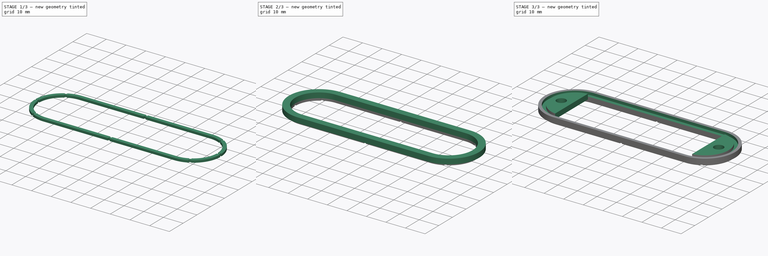
[diagram: build sequence overview — one tinted view per stage of 3, left to right]
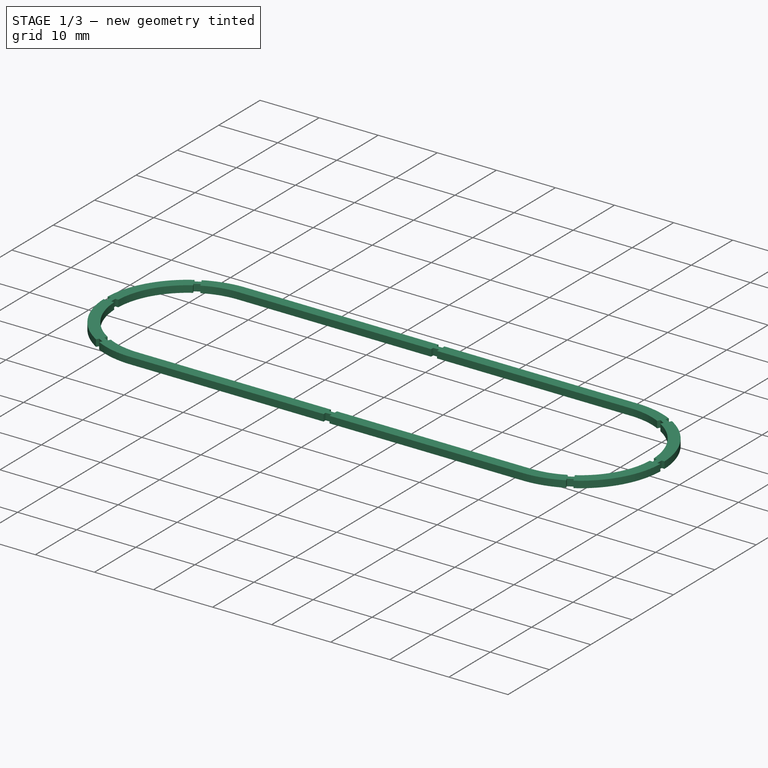
[diagram: stage 1 of 3 — iso view after this stage's code; geometry added in this stage tinted green]
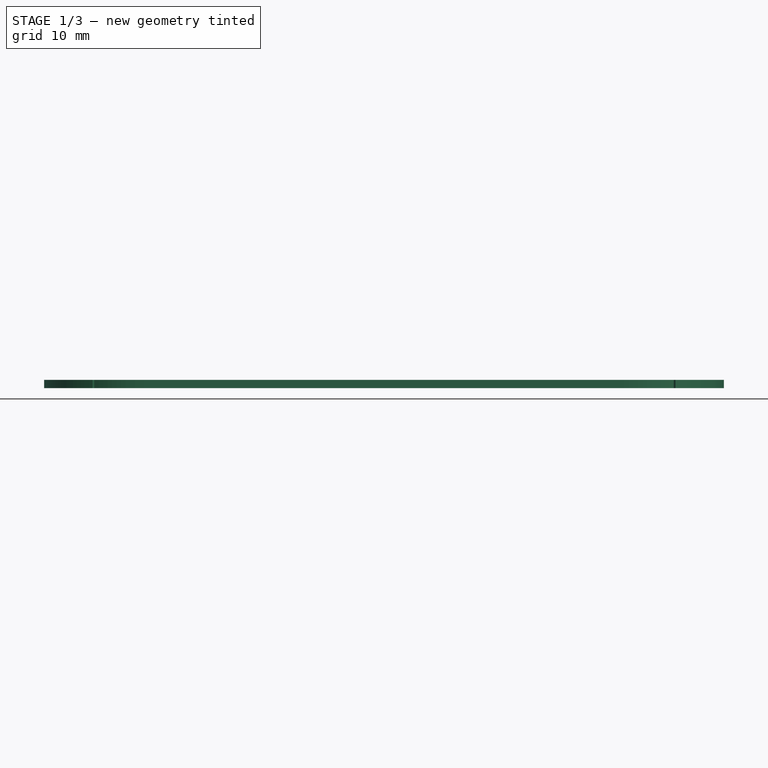
[diagram: stage 1 of 3 — front view after this stage's code; geometry added in this stage tinted green]
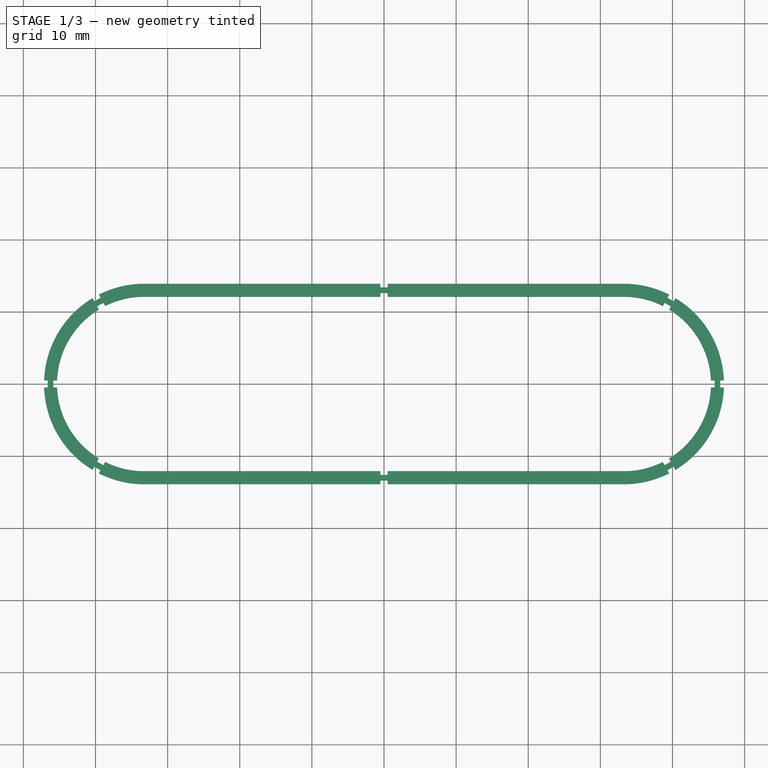
[diagram: stage 1 of 3 — top view after this stage's code; geometry added in this stage tinted green]
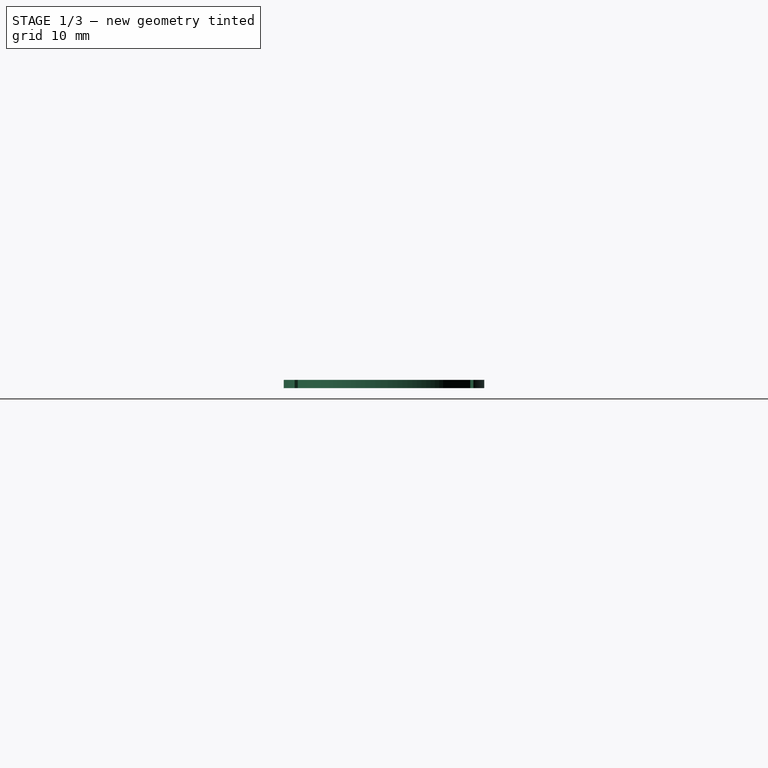
[diagram: stage 1 of 3 — right view after this stage's code; geometry added in this stage tinted green]
FCSTD DOCUMENT  (FreeCAD 0.21R33771 (Git))
Label: wall-4_2
License: All rights reserved
LicenseURL: http://en.wikipedia.org/wiki/All_rights_reserved
objects: Sketcher::SketchObject×5, PartDesign::Pad×3, PartDesign::Pocket×2, Spreadsheet::Sheet×1, PartDesign::Body×1
note: 16 computed .brp shape members not serialized (recipe doc carries the construction recipe); baked Part::Feature solids carry a one-line shape summary decoded from their .brp

FEATURE [Sketcher::SketchObject] Sketch
  FullyConstrained = true
  MapMode = 5
  Support = -> [XY_Plane]
  sketch-geometry (10):
    g0: LineSegment StartX=0 StartY=-13 StartZ=0 EndX=0 EndY=13 EndZ=0
    g1: LineSegment StartX=-33.24 StartY=12.1 StartZ=0 EndX=33.24 EndY=12.1 EndZ=0
    g2: LineSegment StartX=-33.24 StartY=13.9 StartZ=0 EndX=33.24 EndY=13.9 EndZ=0
    g3: Circle CenterX=0 CenterY=13 CenterZ=0 NormalX=0 NormalY=0 NormalZ=1 AngleXU=0 Radius=0.9
    g4: LineSegment StartX=-33.24 StartY=-12.1 StartZ=0 EndX=33.24 EndY=-12.1 EndZ=0
    g5: LineSegment StartX=-33.24 StartY=-13.9 StartZ=0 EndX=33.24 EndY=-13.9 EndZ=0
    g6: ArcOfCircle CenterX=-33.24 CenterY=2e-16 CenterZ=0 NormalX=0 NormalY=0 NormalZ=1 AngleXU=0 Radius=12.1 StartAngle=1.5708 EndAngle=4.71239
    g7: ArcOfCircle CenterX=-33.24 CenterY=1e-16 CenterZ=0 NormalX=0 NormalY=0 NormalZ=1 AngleXU=0 Radius=13.9 StartAngle=1.5708 EndAngle=4.71239
    g8: ArcOfCircle CenterX=33.24 CenterY=-4e-16 CenterZ=0 NormalX=0 NormalY=0 NormalZ=1 AngleXU=0 Radius=12.1 StartAngle=4.71239 EndAngle=7.85398
    g9: ArcOfCircle CenterX=33.24 CenterY=-8e-16 CenterZ=0 NormalX=0 NormalY=0 NormalZ=1 AngleXU=0 Radius=13.9 StartAngle=4.71239 EndAngle=7.85398
  constraints (27):
    c: Symmetric(g0,g0,g-1)
    c: PointOnObject(g-1,g0)
    c: Distance(g0) = 26
    c: Symmetric(g1,g1,g-2)
    c: Symmetric(g2,g2,g-2)
    c: Coincident(g3,g0)
    c: Tangent(g2,g3)
    c: Tangent(g3,g1)
    c: Diameter(g3) = 1.8
    c: Distance(g2) = 66.48
    c: Vertical(g2,g1)
    c: Symmetric(g4,g1,g-1)
    c: Symmetric(g1,g4,g-1)
    c: Symmetric(g2,g5,g-1)
    c: Symmetric(g5,g2,g-1)
    c: Coincident(g6,g1)
    c: Coincident(g6,g4)
    c: Coincident(g7,g2)
    c: Coincident(g7,g5)
    c: Coincident(g8,g1)
    c: Coincident(g4,g8)
    c: Coincident(g9,g2)
    c: Coincident(g5,g9)
    c: Vertical(g1,g6)
    c: Vertical(g7,g2)
    c: Vertical(g8,g1)
    c: Vertical(g2,g9)
FEATURE [PartDesign::Pad] Pad
  Direction = (0,0,1)
  Length = 1.15
  Length2 = 10
  Profile = -> Sketch
  ReferenceAxis = -> Sketch [N_Axis]
  Type = 0
  expr: Length = Spreadsheet.A2 - Spreadsheet.A4
FEATURE [Sketcher::SketchObject] Sketch001
  ExternalGeometry = -> [Pad]
  FullyConstrained = true
  MapMode = 5
  Placement = pos=(0,0,0) rot=(1,0,0;3.14159rad)
  Support = -> [Pad]
  expr: Constraints[115] = Spreadsheet.A1
  expr: Constraints[140] = Spreadsheet.A1
  expr: Constraints[143] = Spreadsheet.A1
  expr: Constraints[90] = Spreadsheet.A1
  sketch-geometry (68):
    g0: LineSegment StartX=0.5 StartY=12.1 StartZ=0 EndX=-0.5 EndY=12.1 EndZ=0
    g1: LineSegment StartX=-0.5 StartY=12.1 StartZ=0 EndX=-0.5 EndY=12.61 EndZ=0
    g2: LineSegment StartX=-0.5 StartY=12.61 StartZ=0 EndX=0.5 EndY=12.61 EndZ=0
    g3: LineSegment StartX=0.5 StartY=12.61 StartZ=0 EndX=0.5 EndY=12.1 EndZ=0
    g4: LineSegment StartX=-0.5 StartY=13.9 StartZ=0 EndX=0.5 EndY=13.9 EndZ=0
    g5: LineSegment StartX=0.5 StartY=13.9 StartZ=0 EndX=0.5 EndY=13.39 EndZ=0
    g6: LineSegment StartX=0.5 StartY=13.39 StartZ=0 EndX=-0.5 EndY=13.39 EndZ=0
    g7: LineSegment StartX=-0.5 StartY=13.39 StartZ=0 EndX=-0.5 EndY=13.9 EndZ=0
    g8: LineSegment StartX=0.5 StartY=-12.1 StartZ=0 EndX=-0.5 EndY=-12.1 EndZ=0
    g9: LineSegment StartX=-0.5 StartY=-12.1 StartZ=0 EndX=-0.5 EndY=-12.61 EndZ=0
    g10: LineSegment StartX=-0.5 StartY=-12.61 StartZ=0 EndX=0.5 EndY=-12.61 EndZ=0
    g11: LineSegment StartX=0.5 StartY=-12.61 StartZ=0 EndX=0.5 EndY=-12.1 EndZ=0
    g12: LineSegment StartX=0.5 StartY=-13.9 StartZ=0 EndX=-0.5 EndY=-13.9 EndZ=0
    g13: LineSegment StartX=-0.5 StartY=-13.9 StartZ=0 EndX=-0.5 EndY=-13.39 EndZ=0
    g14: LineSegment StartX=-0.5 StartY=-13.39 StartZ=0 EndX=0.5 EndY=-13.39 EndZ=0
    g15: LineSegment StartX=0.5 StartY=-13.39 StartZ=0 EndX=0.5 EndY=-13.9 EndZ=0
    g16: LineSegment StartX=45.8397 StartY=-0.5 StartZ=0 EndX=45.3297 EndY=-0.5 EndZ=0
    g17: LineSegment StartX=45.3297 StartY=-0.5 StartZ=0 EndX=45.3297 EndY=0.5 EndZ=0
    g18: LineSegment StartX=45.3297 StartY=0.5 StartZ=0 EndX=45.8397 EndY=0.5 EndZ=0
    g19: LineSegment StartX=45.8397 StartY=0.5 StartZ=0 EndX=45.8397 EndY=-0.5 EndZ=0
    g20: LineSegment StartX=47.14 StartY=-0.5 StartZ=0 EndX=46.63 EndY=-0.5 EndZ=0
    g21: LineSegment StartX=46.63 StartY=-0.5 StartZ=0 EndX=46.63 EndY=0.5 EndZ=0
    g22: LineSegment StartX=46.63 StartY=0.5 StartZ=0 EndX=47.14 EndY=0.5 EndZ=0
    g23: LineSegment StartX=47.14 StartY=0.5 StartZ=0 EndX=47.14 EndY=-0.5 EndZ=0
    g24: LineSegment StartX=-45.3297 StartY=0.5 StartZ=0 EndX=-45.8397 EndY=0.5 EndZ=0
    g25: LineSegment StartX=-45.8397 StartY=0.5 StartZ=0 EndX=-45.8397 EndY=-0.5 EndZ=0
    g26: LineSegment StartX=-45.8397 StartY=-0.5 StartZ=0 EndX=-45.3297 EndY=-0.5 EndZ=0
    g27: LineSegment StartX=-45.3297 StartY=-0.5 StartZ=0 EndX=-45.3297 EndY=0.5 EndZ=0
    g28: LineSegment StartX=-47.14 StartY=0.5 StartZ=0 EndX=-46.63 EndY=0.5 EndZ=0
    g29: LineSegment StartX=-46.63 StartY=0.5 StartZ=0 EndX=-46.63 EndY=-0.5 EndZ=0
    g30: LineSegment StartX=-46.63 StartY=-0.5 StartZ=0 EndX=-47.14 EndY=-0.5 EndZ=0
    g31: LineSegment StartX=-47.14 StartY=-0.5 StartZ=0 EndX=-47.14 EndY=0.5 EndZ=0
    g32: LineSegment StartX=33.24 StartY=8e-16 StartZ=0 EndX=39.9789 EndY=12.1572 EndZ=0
    g33: LineSegment StartX=39.5385 StartY=10.3315 StartZ=0 EndX=38.6639 EndY=10.8163 EndZ=0
    g34: LineSegment StartX=39.5385 StartY=10.3315 StartZ=0 EndX=39.7857 EndY=10.7775 EndZ=0
    g35: LineSegment StartX=38.6639 StartY=10.8163 StartZ=0 EndX=38.9111 EndY=11.2623 EndZ=0
    g36: LineSegment StartX=39.7857 StartY=10.7775 StartZ=0 EndX=38.9111 EndY=11.2623 EndZ=0
    g37: LineSegment StartX=40.4162 StartY=11.9148 StartZ=0 EndX=39.5415 EndY=12.3996 EndZ=0
    g38: LineSegment StartX=39.5415 StartY=12.3996 StartZ=0 EndX=39.2943 EndY=11.9536 EndZ=0
    g39: LineSegment StartX=40.4162 StartY=11.9148 StartZ=0 EndX=40.1689 EndY=11.4688 EndZ=0
    g40: LineSegment StartX=40.1689 StartY=11.4688 StartZ=0 EndX=39.2943 EndY=11.9536 EndZ=0
    g41: LineSegment StartX=33.24 StartY=8e-16 StartZ=0 EndX=39.9789 EndY=-12.1572 EndZ=0
    g42: LineSegment StartX=38.6639 StartY=-10.8163 StartZ=0 EndX=39.5385 EndY=-10.3315 EndZ=0
    g43: LineSegment StartX=38.6639 StartY=-10.8163 StartZ=0 EndX=38.9111 EndY=-11.2623 EndZ=0
    g44: LineSegment StartX=39.5385 StartY=-10.3315 StartZ=0 EndX=39.7857 EndY=-10.7775 EndZ=0
    g45: LineSegment StartX=38.9111 StartY=-11.2623 StartZ=0 EndX=39.7857 EndY=-10.7775 EndZ=0
    g46: LineSegment StartX=39.5415 StartY=-12.3996 StartZ=0 EndX=40.4162 EndY=-11.9148 EndZ=0
    g47: LineSegment StartX=39.5415 StartY=-12.3996 StartZ=0 EndX=39.2943 EndY=-11.9536 EndZ=0
    g48: LineSegment StartX=40.4162 StartY=-11.9148 StartZ=0 EndX=40.1689 EndY=-11.4688 EndZ=0
    g49: LineSegment StartX=39.2943 StartY=-11.9536 StartZ=0 EndX=40.1689 EndY=-11.4688 EndZ=0
    g50: LineSegment StartX=-33.24 StartY=0 StartZ=0 EndX=-39.9789 EndY=12.1572 EndZ=0
    g51: LineSegment StartX=-39.9789 StartY=-12.1572 StartZ=0 EndX=-33.24 EndY=0 EndZ=0
    g52: LineSegment StartX=-39.5385 StartY=10.3315 StartZ=0 EndX=-38.6639 EndY=10.8163 EndZ=0
    g53: LineSegment StartX=-39.5385 StartY=10.3315 StartZ=0 EndX=-39.7857 EndY=10.7775 EndZ=0
    g54: LineSegment StartX=-38.6639 StartY=10.8163 StartZ=0 EndX=-38.9111 EndY=11.2623 EndZ=0
    g55: LineSegment StartX=-39.7857 StartY=10.7775 StartZ=0 EndX=-38.9111 EndY=11.2623 EndZ=0
    g56: LineSegment StartX=-40.4162 StartY=11.9148 StartZ=0 EndX=-39.5415 EndY=12.3996 EndZ=0
    g57: LineSegment StartX=-40.4162 StartY=11.9148 StartZ=0 EndX=-40.1689 EndY=11.4688 EndZ=0
    g58: LineSegment StartX=-39.5415 StartY=12.3996 StartZ=0 EndX=-39.2943 EndY=11.9536 EndZ=0
    g59: LineSegment StartX=-40.1689 StartY=11.4688 StartZ=0 EndX=-39.2943 EndY=11.9536 EndZ=0
    g60: LineSegment StartX=-39.5415 StartY=-12.3996 StartZ=0 EndX=-40.4162 EndY=-11.9148 EndZ=0
    g61: LineSegment StartX=-39.5415 StartY=-12.3996 StartZ=0 EndX=-39.2943 EndY=-11.9536 EndZ=0
    g62: LineSegment StartX=-40.4162 StartY=-11.9148 StartZ=0 EndX=-40.1689 EndY=-11.4688 EndZ=0
    g63: LineSegment StartX=-39.2943 StartY=-11.9536 StartZ=0 EndX=-40.1689 EndY=-11.4688 EndZ=0
    g64: LineSegment StartX=-38.6639 StartY=-10.8163 StartZ=0 EndX=-39.5385 EndY=-10.3315 EndZ=0
    g65: LineSegment StartX=-39.5385 StartY=-10.3315 StartZ=0 EndX=-39.7857 EndY=-10.7775 EndZ=0
    g66: LineSegment StartX=-38.6639 StartY=-10.8163 StartZ=0 EndX=-38.9111 EndY=-11.2623 EndZ=0
    g67: LineSegment StartX=-38.9111 StartY=-11.2623 StartZ=0 EndX=-39.7857 EndY=-10.7775 EndZ=0
  constraints (188):
    c: Coincident(g0,g1)
    c: Coincident(g1,g2)
    c: Coincident(g2,g3)
    c: Coincident(g3,g0)
    c: Horizontal(g2)
    c: Vertical(g1)
    c: Vertical(g3)
    c: Symmetric(g0,g0,g-2)
    c: PointOnObject(g0,g-3)
    c: Distance(g0) = 1
    c: Distance(g3) = 0.51
    c: Coincident(g4,g5)
    c: Coincident(g5,g6)
    c: Coincident(g6,g7)
    c: Coincident(g7,g4)
    c: Horizontal(g6)
    c: Vertical(g5)
    c: Vertical(g7)
    c: Symmetric(g4,g4,g-2)
    c: PointOnObject(g4,g-4)
    c: Equal(g6,g2)
    c: Equal(g5,g3)
    c: Coincident(g8,g9)
    c: Coincident(g9,g10)
    c: Coincident(g10,g11)
    c: Coincident(g11,g8)
    c: Horizontal(g10)
    c: Vertical(g9)
    c: Vertical(g11)
    c: Symmetric(g8,g8,g-2)
    c: PointOnObject(g8,g-7)
    c: Equal(g8,g0)
    c: Equal(g11,g3)
    c: Coincident(g12,g13)
    c: Coincident(g13,g14)
    c: Coincident(g14,g15)
    c: Coincident(g15,g12)
    c: Horizontal(g14)
    c: Vertical(g13)
    c: Vertical(g15)
    c: Symmetric(g12,g12,g-2)
    c: PointOnObject(g12,g-8)
    c: Equal(g10,g14)
    c: Equal(g11,g15)
    c: Coincident(g16,g17)
    c: Coincident(g17,g18)
    c: Coincident(g18,g19)
    c: Coincident(g19,g16)
    c: Horizontal(g16)
    c: Horizontal(g18)
    c: Vertical(g19)
    c: Symmetric(g16,g17,g-1)
    c: PointOnObject(g17,g-9)
    c: Equal(g17,g2)
    c: Equal(g3,g18)
    c: Coincident(g20,g21)
    c: Coincident(g21,g22)
    c: Coincident(g22,g23)
    c: Coincident(g23,g20)
    c: Horizontal(g20)
    c: Horizontal(g22)
    c: Vertical(g21)
    c: Symmetric(g22,g20,g-1)
    c: Tangent(g-10,g23)
    c: Equal(g19,g21)
    c: Equal(g18,g22)
    c: Coincident(g24,g25)
    c: Coincident(g25,g26)
    c: Coincident(g26,g27)
    c: Coincident(g27,g24)
    c: Horizontal(g24)
    c: Horizontal(g26)
    c: Vertical(g25)
    c: Symmetric(g26,g24,g-1)
    c: PointOnObject(g24,g-6)
    c: Equal(g27,g17)
    c: Equal(g18,g24)
    c: Coincident(g28,g29)
    c: Coincident(g29,g30)
    c: Coincident(g30,g31)
    c: Coincident(g31,g28)
    c: Horizontal(g28)
    c: Horizontal(g30)
    c: Vertical(g29)
    c: Symmetric(g30,g28,g-1)
    c: Tangent(g31,g-5)
    c: Equal(g28,g24)
    c: Equal(g31,g25)
    c: Coincident(g32,g-10)
    c: PointOnObject(g32,g-10)
    c: Angle(g32,g-1) = 2.07694
    c: PointOnObject(g33,g-9)
    c: Symmetric(g33,g33,g32)
    c: Coincident(g34,g33)
    c: Perpendicular(g34,g33)
    c: Coincident(g35,g33)
    c: Perpendicular(g33,g35)
    c: Coincident(g36,g34)
    c: Coincident(g36,g35)
    c: Parallel(g36,g33)
    c: Equal(g33,g6)
    c: Equal(g5,g35)
    c: Symmetric(g37,g37,g32)
    c: Tangent(g-10,g37)
    c: Coincident(g38,g37)
    c: Perpendicular(g37,g38)
    c: Coincident(g39,g37)
    c: Perpendicular(g37,g39)
    c: Coincident(g40,g39)
    c: Coincident(g40,g38)
    c: Parallel(g40,g37)
    c: Equal(g34,g39)
    c: Equal(g36,g40)
    c: Coincident(g41,g32)
    c: PointOnObject(g41,g-10)
    c: Angle(g-1,g41) = 2.07694
    c: Symmetric(g42,g42,g41)
    c: PointOnObject(g42,g-9)
    c: Coincident(g43,g42)
    c: Coincident(g44,g42)
    c: Perpendicular(g44,g42)
    c: Perpendicular(g43,g42)
    c: Coincident(g45,g43)
    c: Coincident(g45,g44)
    c: Parallel(g45,g42)
    c: Equal(g44,g34)
    c: Equal(g36,g42)
    c: Symmetric(g46,g46,g41)
    c: Tangent(g-10,g46)
    c: Coincident(g47,g46)
    c: Coincident(g48,g46)
    c: Perpendicular(g46,g48)
    c: Perpendicular(g46,g47)
    c: Coincident(g49,g47)
    c: Coincident(g49,g48)
    c: Parallel(g49,g46)
    c: Equal(g49,g45)
    c: Equal(g43,g47)
    c: Coincident(g50,g-6)
    c: PointOnObject(g50,g-5)
    c: Angle(g-1,g50) = 2.07694
    c: PointOnObject(g51,g-5)
    c: Coincident(g51,g50)
    c: Angle(g51,g-1) = 2.07694
    c: Symmetric(g52,g52,g50)
    c: PointOnObject(g52,g-6)
    c: Coincident(g53,g52)
    c: Coincident(g54,g52)
    c: Perpendicular(g52,g54)
    c: Perpendicular(g53,g52)
    c: Coincident(g55,g53)
    c: Coincident(g55,g54)
    c: Parallel(g55,g52)
    c: Equal(g52,g2)
    c: Equal(g1,g54)
    c: Symmetric(g56,g56,g50)
    c: Tangent(g56,g-5)
    c: Coincident(g57,g56)
    c: Coincident(g58,g56)
    c: Perpendicular(g56,g58)
    c: Perpendicular(g57,g56)
    c: Coincident(g59,g57)
    c: Coincident(g59,g58)
    c: Parallel(g56,g59)
    c: Equal(g54,g58)
    c: Equal(g59,g55)
    c: Symmetric(g60,g60,g51)
    c: Tangent(g60,g-5)
    c: Coincident(g61,g60)
    c: Coincident(g62,g60)
    c: Perpendicular(g60,g62)
    c: Perpendicular(g60,g61)
    c: Coincident(g63,g61)
    c: Coincident(g63,g62)
    c: Parallel(g63,g60)
    c: Equal(g63,g25)
    c: Equal(g26,g61)
    c: Symmetric(g64,g64,g51)
    c: PointOnObject(g64,g-6)
    c: Coincident(g65,g64)
    c: Coincident(g66,g64)
    c: Perpendicular(g64,g65)
    c: Perpendicular(g66,g64)
    c: Coincident(g67,g66)
    c: Coincident(g67,g65)
    c: Parallel(g67,g64)
    c: Equal(g61,g66)
    c: Equal(g67,g63)
FEATURE [Spreadsheet::Sheet] Spreadsheet
  cells = A1=119; A2=1.35; A3=2.635; A4=0.2
FEATURE [PartDesign::Pocket] Pocket
  BaseFeature = -> Pad
  Direction = (0,0,1)
  Length = 1.15
  Length2 = 5
  Profile = -> Sketch001
  ReferenceAxis = -> Sketch001 [N_Axis]
  Type = 0
  expr: Length = Spreadsheet.A2 - Spreadsheet.A4
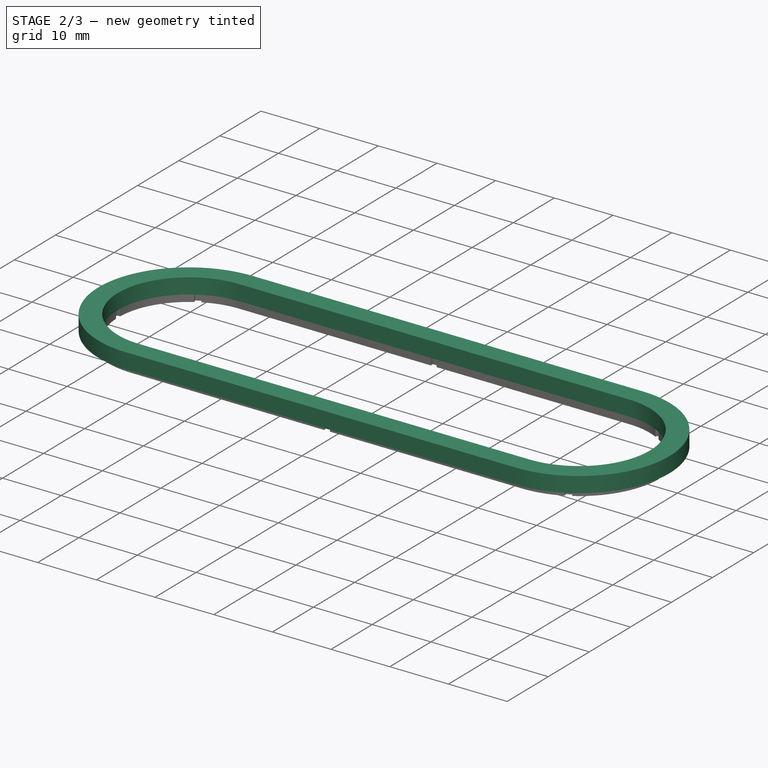
[diagram: stage 2 of 3 — iso view after this stage's code; geometry added in this stage tinted green]
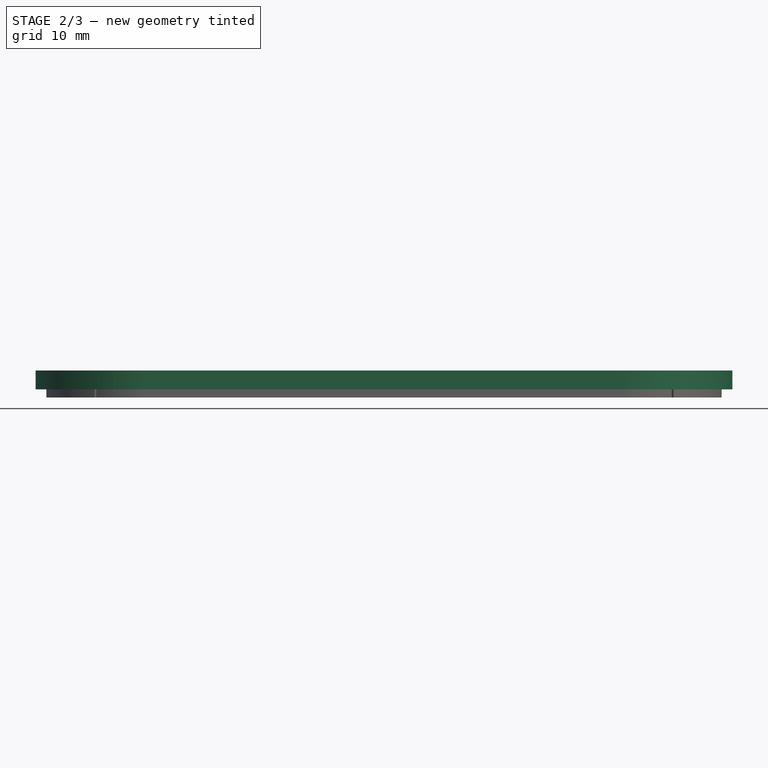
[diagram: stage 2 of 3 — front view after this stage's code; geometry added in this stage tinted green]
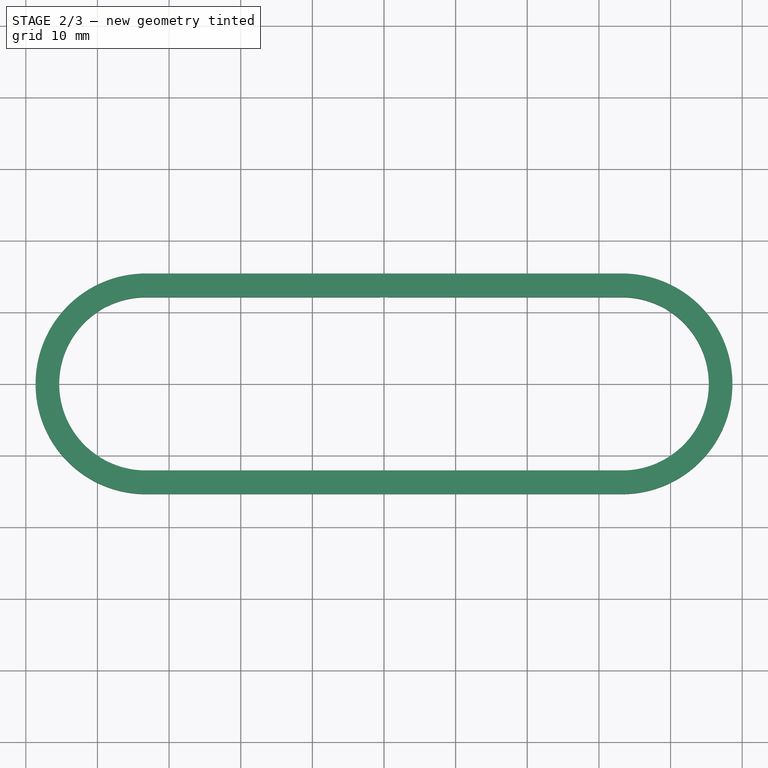
[diagram: stage 2 of 3 — top view after this stage's code; geometry added in this stage tinted green]
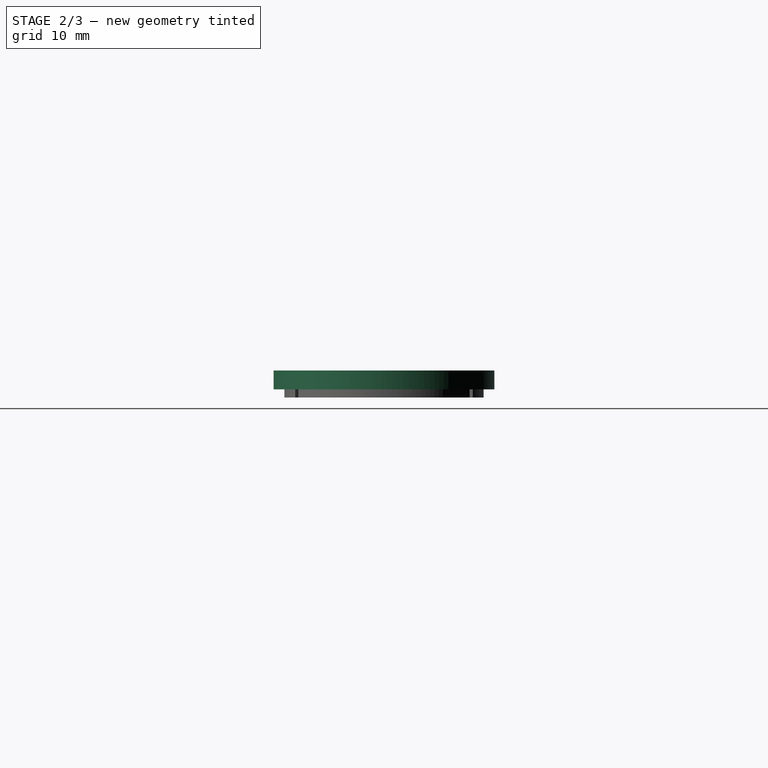
[diagram: stage 2 of 3 — right view after this stage's code; geometry added in this stage tinted green]
FEATURE [Sketcher::SketchObject] Sketch002
  ExternalGeometry = -> [Sketch]
  FullyConstrained = true
  MapMode = 5
  Placement = pos=(0,0,1.15) rot=(0,0,1;0rad)
  Support = -> [Pocket]
  sketch-geometry (10):
    g0: LineSegment StartX=-33.24 StartY=15.4 StartZ=0 EndX=33.24 EndY=15.4 EndZ=0
    g1: LineSegment StartX=-33.24 StartY=-15.4 StartZ=0 EndX=33.24 EndY=-15.4 EndZ=0
    g2: LineSegment StartX=-33.24 StartY=15.4 StartZ=0 EndX=-33.24 EndY=-15.4 EndZ=0
    g3: ArcOfCircle CenterX=-33.24 CenterY=-5e-16 CenterZ=0 NormalX=0 NormalY=0 NormalZ=1 AngleXU=0 Radius=15.4 StartAngle=1.5708 EndAngle=4.71239
    g4: LineSegment StartX=33.24 StartY=-15.4 StartZ=0 EndX=33.24 EndY=15.4 EndZ=0
    g5: ArcOfCircle CenterX=33.24 CenterY=-5e-16 CenterZ=0 NormalX=0 NormalY=0 NormalZ=1 AngleXU=0 Radius=15.4 StartAngle=4.71239 EndAngle=7.85398
    g6: ArcOfCircle CenterX=-33.24 CenterY=1.6608e-11 CenterZ=0 NormalX=0 NormalY=0 NormalZ=1 AngleXU=0 Radius=12.1 StartAngle=1.5708 EndAngle=4.71239
    g7: ArcOfCircle CenterX=33.24 CenterY=-9e-16 CenterZ=0 NormalX=0 NormalY=0 NormalZ=1 AngleXU=0 Radius=12.1 StartAngle=4.71239 EndAngle=7.85398
    g8: LineSegment StartX=33.24 StartY=12.1 StartZ=0 EndX=-33.24 EndY=12.1 EndZ=0
    g9: LineSegment StartX=-33.24 StartY=-12.1 StartZ=0 EndX=33.24 EndY=-12.1 EndZ=0
  constraints (25):
    c: Symmetric(g0,g0,g-2)
    c: Symmetric(g1,g1,g-2)
    c: Symmetric(g0,g1,g-1)
    c: Coincident(g2,g0)
    c: Coincident(g2,g1)
    c: Vertical(g-3,g0)
    c: Distance(g2) = 30.8
    c: Coincident(g3,g0)
    c: Coincident(g3,g1)
    c: PointOnObject(g3,g2)
    c: Coincident(g4,g1)
    c: Coincident(g4,g0)
    c: Coincident(g5,g0)
    c: Coincident(g1,g5)
    c: PointOnObject(g5,g4)
    c: Coincident(g6,g-3)
    c: Coincident(g6,g-3)
    c: PointOnObject(g6,g2)
    c: Coincident(g7,g-4)
    c: Coincident(g7,g-4)
    c: PointOnObject(g7,g4)
    c: Coincident(g8,g7)
    c: Coincident(g8,g6)
    c: Coincident(g9,g7)
    c: Coincident(g9,g6)
FEATURE [PartDesign::Pad] Pad001
  BaseFeature = -> Pocket
  Direction = (0,0,1)
  Length = 2.635
  Length2 = 10
  Profile = -> Sketch002
  ReferenceAxis = -> Sketch002 [N_Axis]
  Type = 0
  expr: Length = Spreadsheet.A3
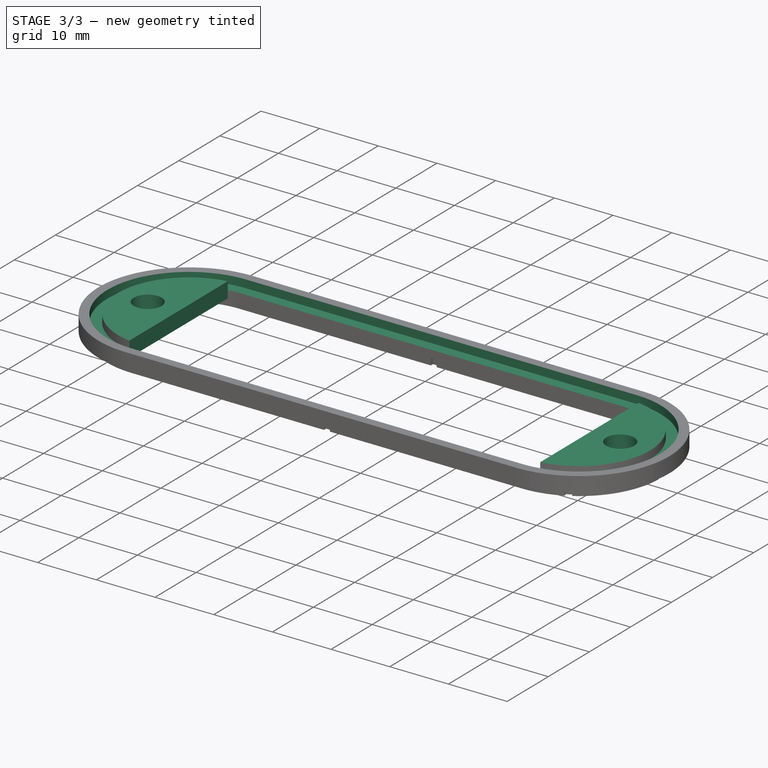
[diagram: stage 3 of 3 — iso view after this stage's code; geometry added in this stage tinted green]
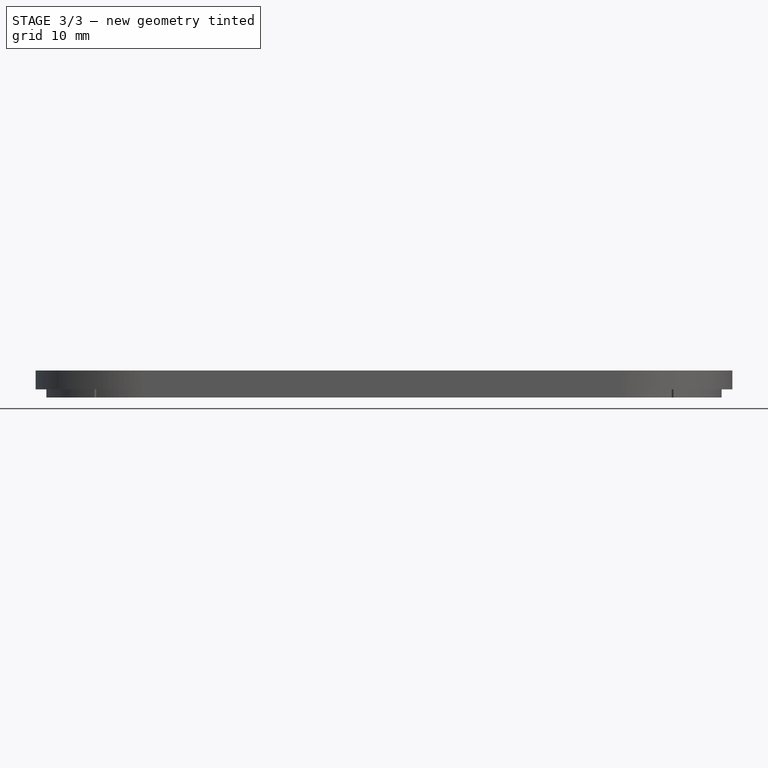
[diagram: stage 3 of 3 — front view after this stage's code; geometry added in this stage tinted green]
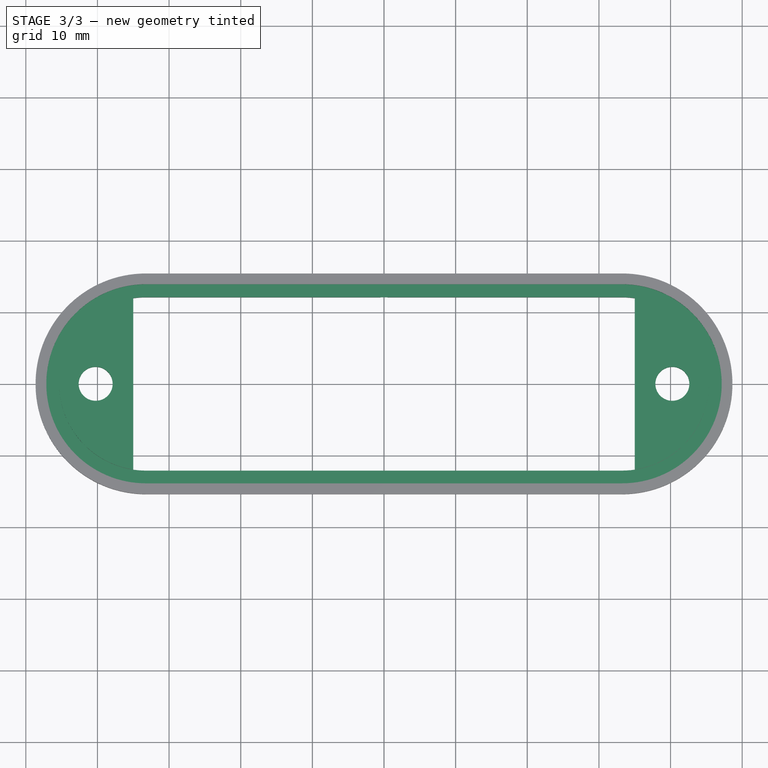
[diagram: stage 3 of 3 — top view after this stage's code; geometry added in this stage tinted green]
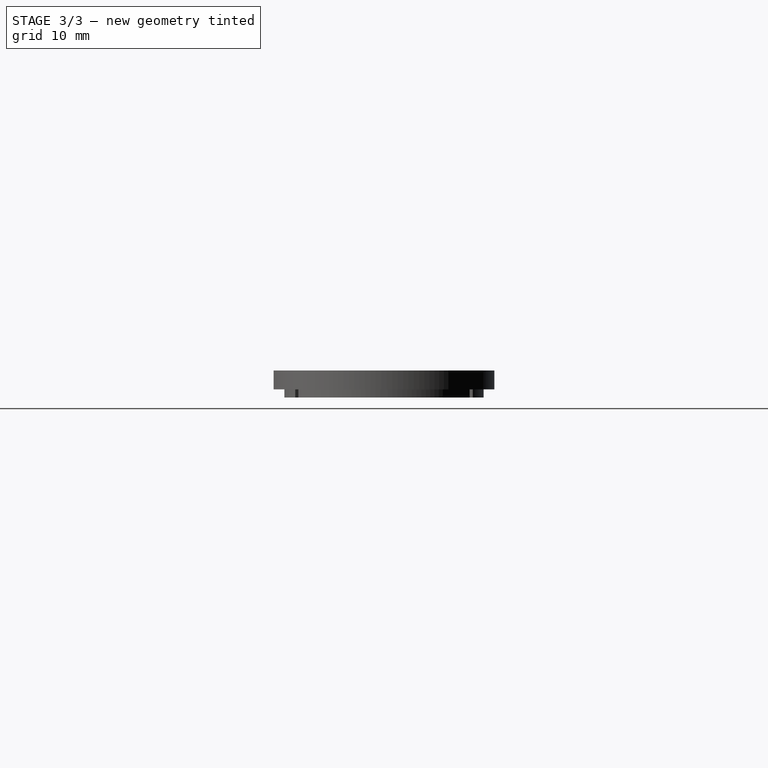
[diagram: stage 3 of 3 — right view after this stage's code; geometry added in this stage tinted green]
FEATURE [Sketcher::SketchObject] Sketch003
  ExternalGeometry = -> [Sketch]
  FullyConstrained = true
  MapMode = 5
  Placement = pos=(0,0,1.15) rot=(0,0,1;0rad)
  Support = -> [Pocket]
  sketch-geometry (8):
    g0: ArcOfCircle CenterX=-33.24 CenterY=1.4e-15 CenterZ=0 NormalX=0 NormalY=0 NormalZ=1 AngleXU=0 Radius=12.1 StartAngle=1.71677 EndAngle=4.56642
    g1: LineSegment StartX=-35 StartY=11.9713 StartZ=0 EndX=-35 EndY=-11.9713 EndZ=0
    g2: LineSegment StartX=-35 StartY=0 StartZ=0 EndX=35 EndY=0 EndZ=0
    g3: Circle CenterX=-40.25 CenterY=0 CenterZ=0 NormalX=0 NormalY=0 NormalZ=1 AngleXU=0 Radius=2.375
    g4: LineSegment StartX=-40.25 StartY=0 StartZ=0 EndX=40.25 EndY=0 EndZ=0
    g5: Circle CenterX=40.25 CenterY=0 CenterZ=0 NormalX=0 NormalY=0 NormalZ=1 AngleXU=0 Radius=2.375
    g6: LineSegment StartX=35 StartY=-11.9713 StartZ=0 EndX=35 EndY=11.9713 EndZ=0
    g7: ArcOfCircle CenterX=33.24 CenterY=3e-16 CenterZ=0 NormalX=0 NormalY=0 NormalZ=1 AngleXU=0 Radius=12.1 StartAngle=4.85836 EndAngle=7.70801
  constraints (21):
    c: Equal(g0,g-3)
    c: Symmetric(g0,g0,g-1)
    c: Vertical(g-3,g0)
    c: Coincident(g0,g1)
    c: Coincident(g1,g0)
    c: Symmetric(g2,g2,g-2)
    c: PointOnObject(g2,g-1)
    c: PointOnObject(g2,g1)
    c: Distance(g2) = 70
    c: PointOnObject(g3,g-1)
    c: Diameter(g3) = 4.75
    c: Symmetric(g4,g4,g-2)
    c: Coincident(g4,g3)
    c: Distance(g4) = 80.5
    c: Symmetric(g3,g5,g-2)
    c: Equal(g3,g5)
    c: Symmetric(g6,g0,g-2)
    c: Symmetric(g6,g0,g-2)
    c: Coincident(g7,g6)
    c: Coincident(g7,g6)
    c: Vertical(g7,g-4)
FEATURE [PartDesign::Pad] Pad002
  BaseFeature = -> Pad001
  Direction = (0,0,1)
  Length = 2.635
  Length2 = 10
  Profile = -> Sketch003
  ReferenceAxis = -> Sketch003 [N_Axis]
  Type = 0
  expr: Length = Spreadsheet.A3
FEATURE [Sketcher::SketchObject] Sketch004
  ExternalGeometry = -> [Sketch]
  FullyConstrained = true
  MapMode = 5
  Placement = pos=(0,0,3.785) rot=(0,0,1;0rad)
  Support = -> [Pad002]
  sketch-geometry (9):
    g0: ArcOfCircle CenterX=-33.24 CenterY=5e-16 CenterZ=0 NormalX=0 NormalY=0 NormalZ=1 AngleXU=0 Radius=12.1 StartAngle=1.5708 EndAngle=4.71239
    g1: ArcOfCircle CenterX=33.24 CenterY=8e-16 CenterZ=0 NormalX=0 NormalY=0 NormalZ=1 AngleXU=0 Radius=12.1 StartAngle=4.71239 EndAngle=7.85398
    g2: LineSegment StartX=-33.24 StartY=12.1 StartZ=0 EndX=33.24 EndY=12.1 EndZ=0
    g3: LineSegment StartX=-33.24 StartY=-12.1 StartZ=0 EndX=33.24 EndY=-12.1 EndZ=0
    g4: ArcOfCircle CenterX=-33.24 CenterY=0 CenterZ=0 NormalX=0 NormalY=0 NormalZ=1 AngleXU=0 Radius=13.9 StartAngle=1.5708 EndAngle=4.71239
    g5: ArcOfCircle CenterX=33.24 CenterY=0 CenterZ=0 NormalX=0 NormalY=0 NormalZ=1 AngleXU=0 Radius=13.9 StartAngle=4.71239 EndAngle=7.85398
    g6: LineSegment StartX=33.24 StartY=13.9 StartZ=0 EndX=-33.24 EndY=13.9 EndZ=0
    g7: LineSegment StartX=-33.24 StartY=-13.9 StartZ=0 EndX=33.24 EndY=-13.9 EndZ=0
    g8: LineSegment StartX=-33.24 StartY=12.1 StartZ=0 EndX=-33.24 EndY=13.9 EndZ=0
  constraints (26):
    c: Coincident(g0,g-3)
    c: Coincident(g0,g-3)
    c: Vertical(g0,g0)
    c: Coincident(g-4,g1)
    c: Coincident(g-4,g1)
    c: Vertical(g1,g1)
    c: Coincident(g2,g0)
    c: Coincident(g2,g1)
    c: Coincident(g3,g1)
    c: Coincident(g3,g0)
    c: Vertical(g0,g4)
    c: PointOnObject(g4,g-1)
    c: Vertical(g4,g0)
    c: Vertical(g0,g4)
    c: Vertical(g1,g5)
    c: PointOnObject(g5,g-1)
    c: Vertical(g1,g5)
    c: Vertical(g1,g5)
    c: Equal(g5,g4)
    c: Coincident(g6,g5)
    c: Coincident(g6,g4)
    c: Coincident(g7,g5)
    c: Coincident(g7,g4)
    c: Coincident(g8,g0)
    c: Coincident(g8,g4)
    c: Distance(g8) = 1.8
FEATURE [PartDesign::Pocket] Pocket001
  BaseFeature = -> Pad002
  Direction = (0,0,-1)
  Length = 1.35
  Length2 = 5
  Profile = -> Sketch004
  ReferenceAxis = -> Sketch004 [N_Axis]
  Type = 0
  expr: Length = Spreadsheet.A2
FEATURE [PartDesign::Body] Body
  Group = -> [Sketch,Pad,Sketch001,Pocket,Sketch002,Pad001,Sketch003,Pad002,Sketch004,Pocket001]
  Origin = -> Origin
  Tip = -> Pocket001
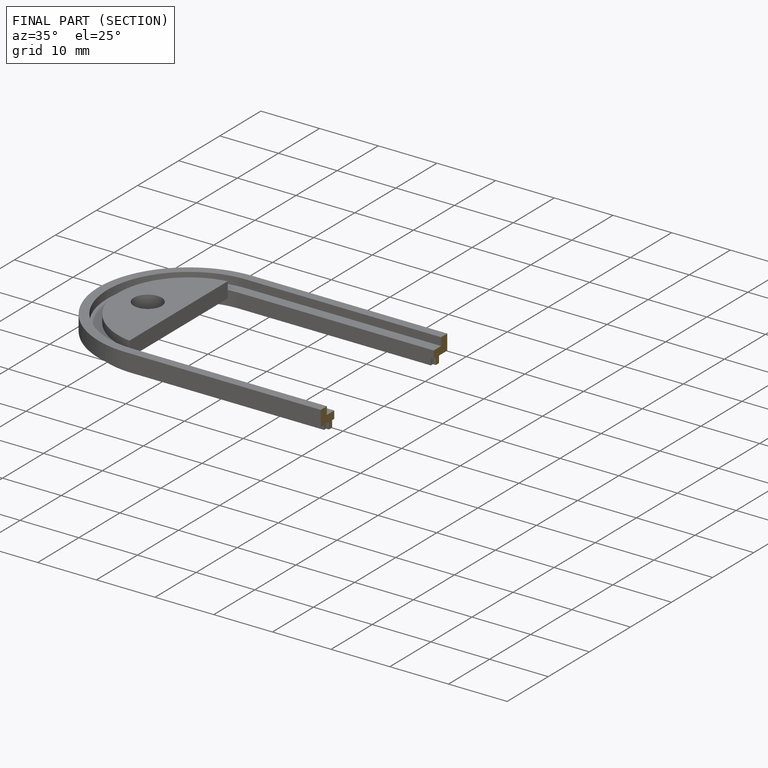
[diagram: finished part — half-section view (interior)]
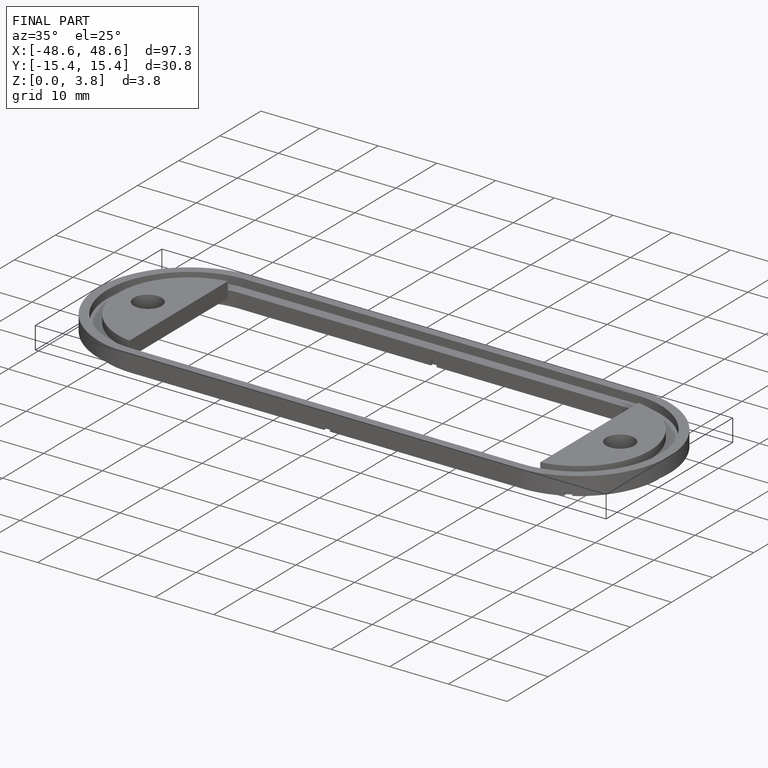
[diagram: finished part — iso view with bounding-box wireframe]
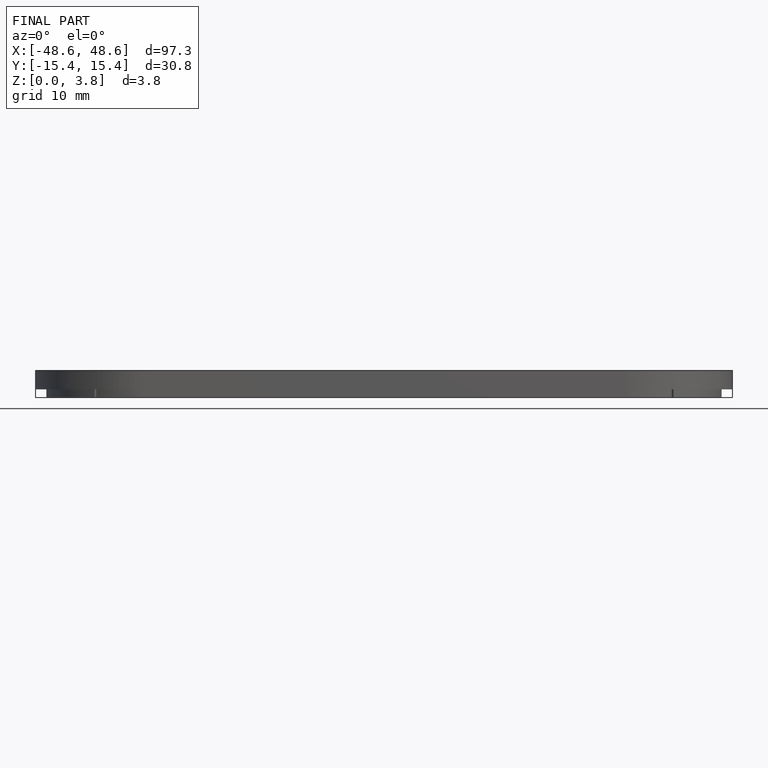
[diagram: finished part — front view with bounding-box wireframe]
